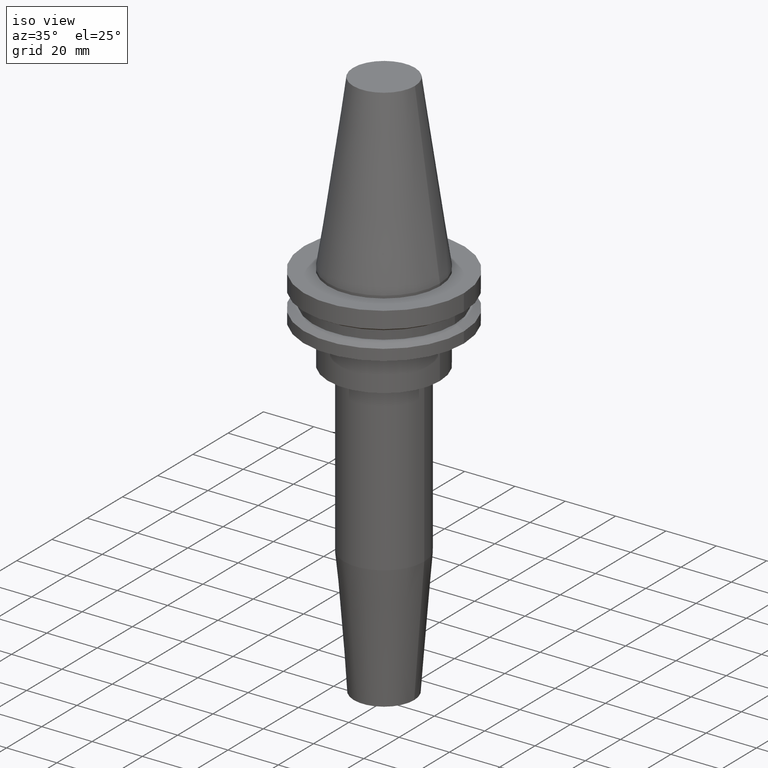
[diagram: clean part render]
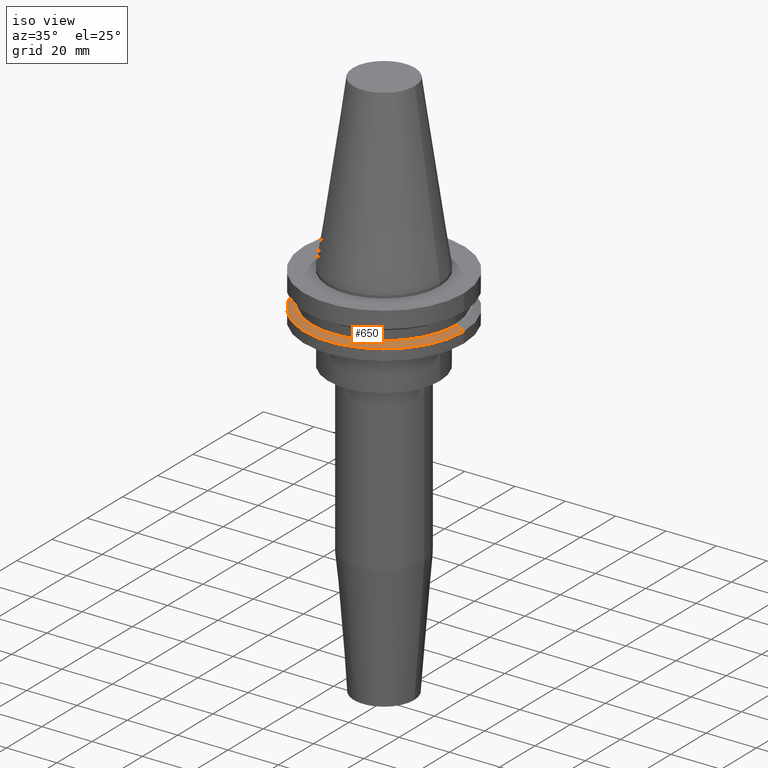
[diagram: same view with one face highlighted and labeled with its STEP entity id]
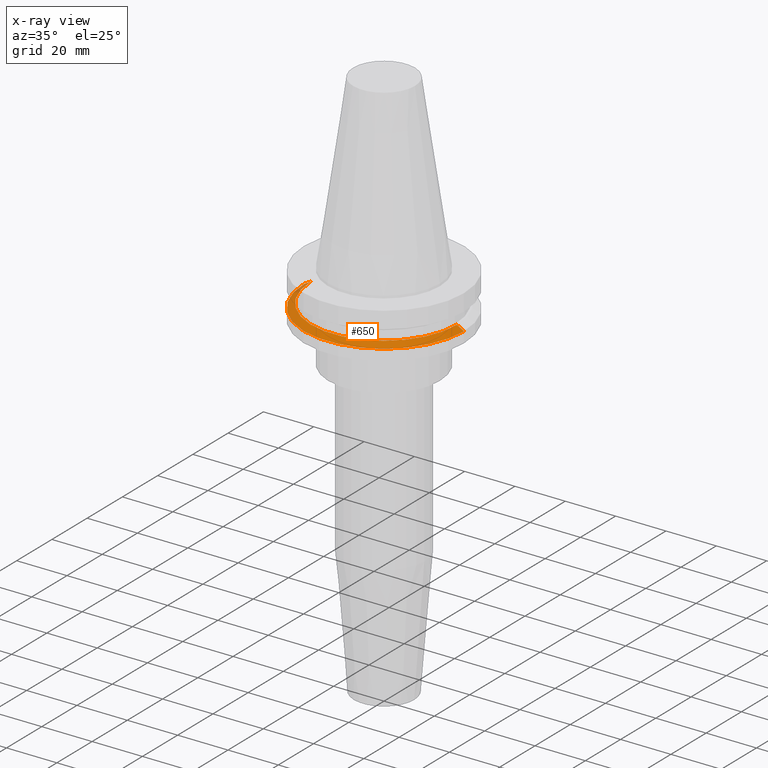
[diagram: x-ray of the same camera — body ghosted, the highlighted face saturated]
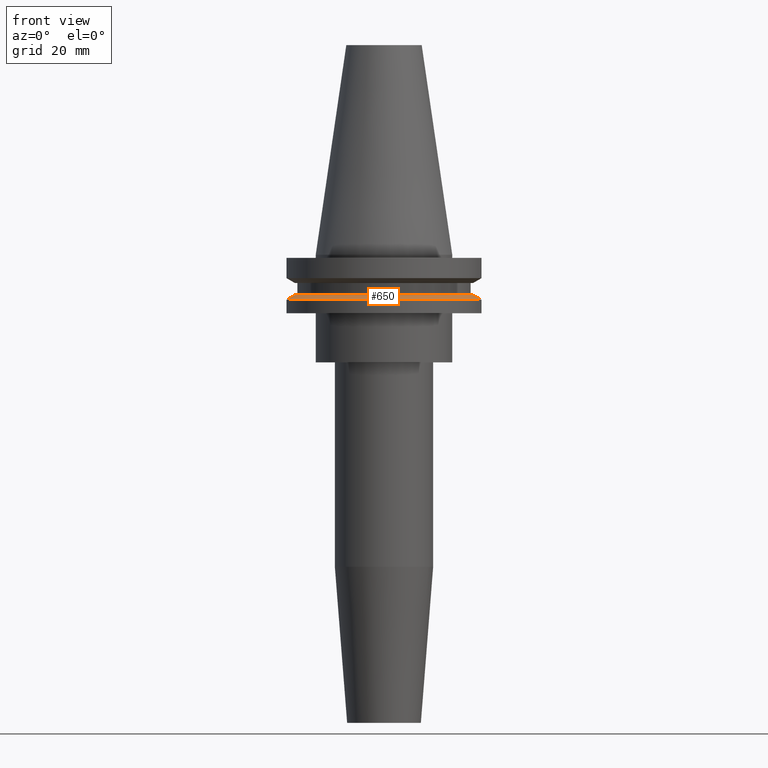
[diagram: same view with one face highlighted and labeled with its STEP entity id]
A machine part, iso view. The second image highlights one B-rep face of the part: STEP entity #650.
The next image is the same camera in x-ray: the body ghosted, the highlighted face saturated — about 2% of this face is hidden behind the body in this view.
A second angle (front view) of the same face is appended — the face is thin or edge-on in the first view.
In plain terms, the highlighted conical surface has half-angle 60 deg.
Its self-contained STEP definition (entity closure, byte-faithful):
#13 = CARTESIAN_POINT ( 'NONE',  ( 31.75000000000000000, 0.000000000000000000, -14.65472339340266572 ) ) ;
#19 = CIRCLE ( 'NONE', #154, 28.97919780457008088 ) ;
#32 = AXIS2_PLACEMENT_3D ( 'NONE', #670, #408, #276 ) ;
#53 = LINE ( 'NONE', #200, #146 ) ;
#54 = EDGE_CURVE ( 'NONE', #290, #79, #53, .T. ) ;
#59 = DIRECTION ( 'NONE',  ( -0.8660254037844387076, 0.000000000000000000, -0.4999999999999998890 ) ) ;
#63 = EDGE_CURVE ( 'NONE', #377, #228, #66, .T. ) ;
#66 = LINE ( 'NONE', #406, #315 ) ;
#73 = DIRECTION ( 'NONE',  ( 0.000000000000000000, 0.000000000000000000, -1.000000000000000000 ) ) ;
#78 = CARTESIAN_POINT ( 'NONE',  ( 0.000000000000000000, 0.000000000000000000, -13.05499999999999794 ) ) ;
#79 = VERTEX_POINT ( 'NONE', #594 ) ;
#146 = VECTOR ( 'NONE', #59, 1000.000000000000000 ) ;
#154 = AXIS2_PLACEMENT_3D ( 'NONE', #78, #209, #224 ) ;
#158 = CONICAL_SURFACE ( 'NONE', #403, 31.75000000000000000, 1.047197551196597853 ) ;
#200 = CARTESIAN_POINT ( 'NONE',  ( -31.75000000000000000, 0.000000000000000000, -14.65472339340266572 ) ) ;
#209 = DIRECTION ( 'NONE',  ( -0.000000000000000000, -0.000000000000000000, 1.000000000000000000 ) ) ;
#224 = DIRECTION ( 'NONE',  ( 1.000000000000000000, 0.000000000000000000, 0.000000000000000000 ) ) ;
#227 = CARTESIAN_POINT ( 'NONE',  ( 28.97919780457008088, 3.718590885307660666E-15, -13.05499999999999794 ) ) ;
#228 = VERTEX_POINT ( 'NONE', #13 ) ;
#276 = DIRECTION ( 'NONE',  ( 1.000000000000000000, 0.000000000000000000, 0.000000000000000000 ) ) ;
#290 = VERTEX_POINT ( 'NONE', #554 ) ;
#309 = ORIENTED_EDGE ( 'NONE', *, *, #704, .T. ) ;
#310 = EDGE_CURVE ( 'NONE', #290, #377, #19, .T. ) ;
#315 = VECTOR ( 'NONE', #649, 1000.000000000000000 ) ;
#349 = DIRECTION ( 'NONE',  ( -1.000000000000000000, 0.000000000000000000, 0.000000000000000000 ) ) ;
#353 = CARTESIAN_POINT ( 'NONE',  ( 0.000000000000000000, 0.000000000000000000, -14.65472339340266572 ) ) ;
#377 = VERTEX_POINT ( 'NONE', #227 ) ;
#403 = AXIS2_PLACEMENT_3D ( 'NONE', #353, #73, #349 ) ;
#406 = CARTESIAN_POINT ( 'NONE',  ( 31.75000000000000000, 3.888253587292846476E-15, -14.65472339340266572 ) ) ;
#408 = DIRECTION ( 'NONE',  ( -0.000000000000000000, -0.000000000000000000, 1.000000000000000000 ) ) ;
#464 = ORIENTED_EDGE ( 'NONE', *, *, #54, .T. ) ;
#475 = FACE_OUTER_BOUND ( 'NONE', #682, .T. ) ;
#554 = CARTESIAN_POINT ( 'NONE',  ( -28.97919780457008088, 0.000000000000000000, -13.05499999999999794 ) ) ;
#594 = CARTESIAN_POINT ( 'NONE',  ( -31.75000000000000000, 3.888253587292846476E-15, -14.65472339340266572 ) ) ;
#640 = ORIENTED_EDGE ( 'NONE', *, *, #310, .F. ) ;
#649 = DIRECTION ( 'NONE',  ( 0.8660254037844387076, 1.060575238724906915E-16, -0.4999999999999998890 ) ) ;
#650 = ADVANCED_FACE ( 'NONE', ( #475 ), #158, .T. ) ;
#669 = CIRCLE ( 'NONE', #32, 31.75000000000000000 ) ;
#670 = CARTESIAN_POINT ( 'NONE',  ( 0.000000000000000000, 0.000000000000000000, -14.65472339340266572 ) ) ;
#682 = EDGE_LOOP ( 'NONE', ( #724, #640, #464, #309 ) ) ;
#704 = EDGE_CURVE ( 'NONE', #79, #228, #669, .T. ) ;
#724 = ORIENTED_EDGE ( 'NONE', *, *, #63, .F. ) ;